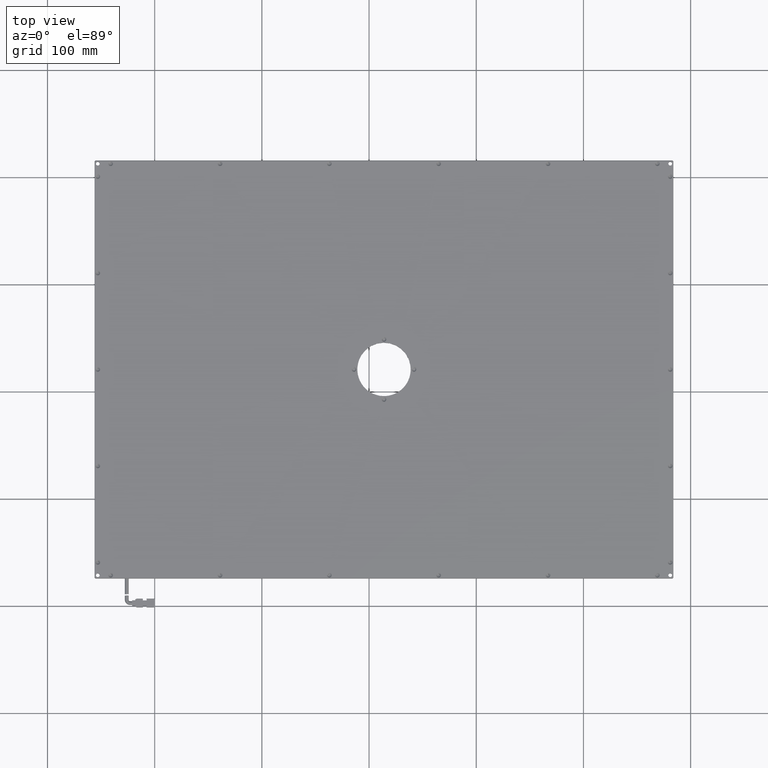
[diagram: clean part render]
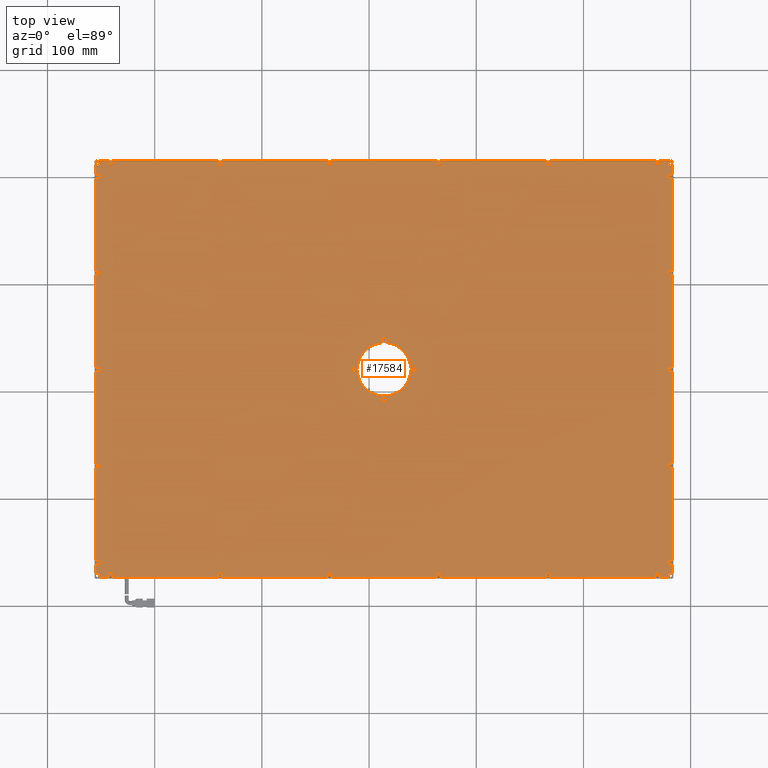
[diagram: same view with one face highlighted and labeled with its STEP entity id]
A machine part, top view. The second image highlights one B-rep face of the part: STEP entity #17584.
In plain terms, the highlighted planar face has unit normal (0, 0, -1).
Its self-contained STEP definition (entity closure, byte-faithful):
#155 = AXIS2_PLACEMENT_3D ( 'NONE', #20950, #4911, #40792 ) ;
#166 = EDGE_CURVE ( 'NONE', #37357, #31211, #18903, .T. ) ;
#238 = VECTOR ( 'NONE', #29577, 1000.000000000000100 ) ;
#309 = CARTESIAN_POINT ( 'NONE',  ( 282.7338491700787100, -173.7877225866915600, 13.00000000001910500 ) ) ;
#612 = CARTESIAN_POINT ( 'NONE',  ( 16.14095595130821100, -7.287722586691636200, 13.00000000000500200 ) ) ;
#625 = DIRECTION ( 'NONE',  ( 0.0000000000000000000, 0.0000000000000000000, -1.000000000000000000 ) ) ;
#810 = VERTEX_POINT ( 'NONE', #4248 ) ;
#872 = EDGE_CURVE ( 'NONE', #2070, #21218, #9017, .T. ) ;
#898 = CARTESIAN_POINT ( 'NONE',  ( 283.4409559512651500, 215.7122774133083900, 13.00000000001910100 ) ) ;
#939 = EDGE_CURVE ( 'NONE', #28006, #42397, #39260, .T. ) ;
#941 = DIRECTION ( 'NONE',  ( 1.000000000000000000, 0.0000000000000000000, 0.0000000000000000000 ) ) ;
#1049 = VERTEX_POINT ( 'NONE', #12211 ) ;
#1092 = EDGE_CURVE ( 'NONE', #35466, #3641, #39222, .T. ) ;
#1133 = CARTESIAN_POINT ( 'NONE',  ( -254.8519372675482400, -173.7877225866915600, 13.00000000001910100 ) ) ;
#1212 = CARTESIAN_POINT ( 'NONE',  ( 164.7409559513039900, 212.7122774133083900, 13.00000000000500200 ) ) ;
#1261 = CIRCLE ( 'NONE', #16149, 2.199999999937030100 ) ;
#1281 = CARTESIAN_POINT ( 'NONE',  ( -39.25904404868823900, 212.7122774133083900, 13.00000000000500200 ) ) ;
#1433 = EDGE_CURVE ( 'NONE', #1049, #5271, #41779, .T. ) ;
#1535 = VERTEX_POINT ( 'NONE', #40646 ) ;
#1611 = VERTEX_POINT ( 'NONE', #2041 ) ;
#1675 = CARTESIAN_POINT ( 'NONE',  ( -256.0590440487347900, -173.7877225866915600, 13.00000000001910100 ) ) ;
#1697 = ORIENTED_EDGE ( 'NONE', *, *, #9863, .T. ) ;
#1796 = EDGE_LOOP ( 'NONE', ( #34907, #39929 ) ) ;
#1914 = DIRECTION ( 'NONE',  ( -0.0000000000000000000, 0.0000000000000000000, -1.000000000000000000 ) ) ;
#1946 = EDGE_LOOP ( 'NONE', ( #11301, #15392 ) ) ;
#2041 = CARTESIAN_POINT ( 'NONE',  ( -255.2590440487368800, 110.7122774133084700, 13.00000000006184600 ) ) ;
#2054 = VERTEX_POINT ( 'NONE', #3352 ) ;
#2070 = VERTEX_POINT ( 'NONE', #3769 ) ;
#2075 = DIRECTION ( 'NONE',  ( 1.000000000000000000, 0.0000000000000000000, 0.0000000000000000000 ) ) ;
#2140 = VERTEX_POINT ( 'NONE', #27664 ) ;
#2182 = CARTESIAN_POINT ( 'NONE',  ( 280.9409559512652100, -159.2877225866916100, 13.00000000006184600 ) ) ;
#2296 = DIRECTION ( 'NONE',  ( -9.856383386609724400E-017, 0.0000000000000000000, 1.000000000000000000 ) ) ;
#2327 = DIRECTION ( 'NONE',  ( 0.0000000000000000000, 0.0000000000000000000, -1.000000000000000000 ) ) ;
#2416 = CIRCLE ( 'NONE', #10755, 2.199999999921153900 ) ;
#2472 = DIRECTION ( 'NONE',  ( -1.000000000000000000, 0.0000000000000000000, 0.0000000000000000000 ) ) ;
#2608 = DIRECTION ( 'NONE',  ( 1.000000000000000000, 0.0000000000000000000, 0.0000000000000000000 ) ) ;
#2625 = FACE_BOUND ( 'NONE', #42572, .T. ) ;
#2856 = AXIS2_PLACEMENT_3D ( 'NONE', #31541, #38002, #5338 ) ;
#2875 = DIRECTION ( 'NONE',  ( 1.000000000000000000, 0.0000000000000000000, 0.0000000000000000000 ) ) ;
#2929 = DIRECTION ( 'NONE',  ( 1.000000000000000000, 0.0000000000000000000, 0.0000000000000000000 ) ) ;
#2967 = EDGE_CURVE ( 'NONE', #38368, #32480, #5172, .T. ) ;
#3088 = DIRECTION ( 'NONE',  ( 1.000000000000000000, 0.0000000000000000000, 0.0000000000000000000 ) ) ;
#3093 = CIRCLE ( 'NONE', #14209, 2.200000000059376700 ) ;
#3101 = AXIS2_PLACEMENT_3D ( 'NONE', #15348, #2296, #35098 ) ;
#3177 = DIRECTION ( 'NONE',  ( 0.0000000000000000000, -1.000000000000000000, 0.0000000000000000000 ) ) ;
#3303 = AXIS2_PLACEMENT_3D ( 'NONE', #27501, #27355, #20795 ) ;
#3332 = ORIENTED_EDGE ( 'NONE', *, *, #40473, .T. ) ;
#3347 = CIRCLE ( 'NONE', #10128, 2.200000000002089200 ) ;
#3352 = CARTESIAN_POINT ( 'NONE',  ( 64.94095595126519500, 214.9122774132372600, 13.00000000006184600 ) ) ;
#3381 = EDGE_CURVE ( 'NONE', #27591, #31939, #29188, .T. ) ;
#3417 = CARTESIAN_POINT ( 'NONE',  ( -139.0590440487348200, 212.7122774133083900, 13.00000000000500200 ) ) ;
#3450 = DIRECTION ( 'NONE',  ( -0.0000000000000000000, 0.0000000000000000000, -1.000000000000000000 ) ) ;
#3451 = EDGE_CURVE ( 'NONE', #31939, #27591, #16848, .T. ) ;
#3641 = VERTEX_POINT ( 'NONE', #6896 ) ;
#3656 = FACE_BOUND ( 'NONE', #31641, .T. ) ;
#3735 = VERTEX_POINT ( 'NONE', #612 ) ;
#3769 = CARTESIAN_POINT ( 'NONE',  ( -34.85904404878137100, 212.7122774133083900, 13.00000000000500200 ) ) ;
#4070 = AXIS2_PLACEMENT_3D ( 'NONE', #6003, #19163, #16032 ) ;
#4097 = AXIS2_PLACEMENT_3D ( 'NONE', #25419, #5674, #22134 ) ;
#4148 = FACE_BOUND ( 'NONE', #41769, .T. ) ;
#4168 = DIRECTION ( 'NONE',  ( -0.0000000000000000000, 0.0000000000000000000, -1.000000000000000000 ) ) ;
#4248 = CARTESIAN_POINT ( 'NONE',  ( -255.5590440487347600, 214.5051706321220000, 13.00000000001910100 ) ) ;
#4296 = DIRECTION ( 'NONE',  ( 0.0000000000000000000, 1.000000000000000000, 0.0000000000000000000 ) ) ;
#4452 = EDGE_CURVE ( 'NONE', #18303, #13914, #16171, .T. ) ;
#4488 = EDGE_LOOP ( 'NONE', ( #14322, #20397 ) ) ;
#4668 = FACE_BOUND ( 'NONE', #9430, .T. ) ;
#4860 = AXIS2_PLACEMENT_3D ( 'NONE', #16897, #33641, #30202 ) ;
#4911 = DIRECTION ( 'NONE',  ( -0.0000000000000000000, 0.0000000000000000000, -1.000000000000000000 ) ) ;
#4991 = CARTESIAN_POINT ( 'NONE',  ( -250.8590440487327300, -69.28772258669162900, 13.00000000006184600 ) ) ;
#5039 = CIRCLE ( 'NONE', #11040, 1.750000000000029300 ) ;
#5040 = CARTESIAN_POINT ( 'NONE',  ( -255.2590440487368800, 20.71227741330838900, 13.00000000006184600 ) ) ;
#5083 = VERTEX_POINT ( 'NONE', #13051 ) ;
#5110 = CARTESIAN_POINT ( 'NONE',  ( 280.9409559512652100, 212.7122774133083900, 13.00000000001910100 ) ) ;
#5160 = VERTEX_POINT ( 'NONE', #9782 ) ;
#5168 = ORIENTED_EDGE ( 'NONE', *, *, #30577, .T. ) ;
#5172 = CIRCLE ( 'NONE', #17666, 2.199999999936586000 ) ;
#5190 = DIRECTION ( 'NONE',  ( 1.000000000000000000, 0.0000000000000000000, 0.0000000000000000000 ) ) ;
#5218 = EDGE_CURVE ( 'NONE', #41530, #2140, #24738, .T. ) ;
#5237 = CIRCLE ( 'NONE', #28224, 2.200000000002089200 ) ;
#5271 = VERTEX_POINT ( 'NONE', #26911 ) ;
#5338 = DIRECTION ( 'NONE',  ( 1.000000000000000000, 0.0000000000000000000, 0.0000000000000000000 ) ) ;
#5466 = VERTEX_POINT ( 'NONE', #21349 ) ;
#5468 = DIRECTION ( 'NONE',  ( -0.0000000000000000000, -9.856383386550534000E-017, -1.000000000000000000 ) ) ;
#5520 = EDGE_LOOP ( 'NONE', ( #5591, #28084 ) ) ;
#5524 = EDGE_CURVE ( 'NONE', #22888, #37449, #5237, .T. ) ;
#5591 = ORIENTED_EDGE ( 'NONE', *, *, #34864, .T. ) ;
#5670 = DIRECTION ( 'NONE',  ( 0.0000000000000000000, -0.0000000000000000000, 1.000000000000000000 ) ) ;
#5674 = DIRECTION ( 'NONE',  ( -0.0000000000000000000, 0.0000000000000000000, -1.000000000000000000 ) ) ;
#5793 = CARTESIAN_POINT ( 'NONE',  ( -14.05904404873481500, 20.71227741330833200, 13.00000000000500200 ) ) ;
#5865 = ORIENTED_EDGE ( 'NONE', *, *, #12553, .T. ) ;
#5893 = CARTESIAN_POINT ( 'NONE',  ( -250.8590440487327300, 200.7122774133083900, 13.00000000006184600 ) ) ;
#5970 = DIRECTION ( 'NONE',  ( 1.000000000000000000, 0.0000000000000000000, 0.0000000000000000000 ) ) ;
#6003 = CARTESIAN_POINT ( 'NONE',  ( 41.94095595126523800, 20.71227741330844600, 13.00000000000500200 ) ) ;
#6057 = CARTESIAN_POINT ( 'NONE',  ( 11.74095595122221000, -7.287722586691636200, 13.00000000000500200 ) ) ;
#6070 = DIRECTION ( 'NONE',  ( 0.0000000000000000000, 0.0000000000000000000, -1.000000000000000000 ) ) ;
#6091 = DIRECTION ( 'NONE',  ( 1.000000000000000000, 0.0000000000000000000, 0.0000000000000000000 ) ) ;
#6218 = DIRECTION ( 'NONE',  ( 1.000000000000000000, 0.0000000000000000000, 0.0000000000000000000 ) ) ;
#6426 = CARTESIAN_POINT ( 'NONE',  ( 13.94095595126543300, 48.71227741330841400, 13.00000000000500200 ) ) ;
#6553 = CARTESIAN_POINT ( 'NONE',  ( -241.0590440487347900, -171.2877225866916100, 13.00000000000500200 ) ) ;
#6652 = CARTESIAN_POINT ( 'NONE',  ( -255.5590440487347600, 214.5051706321220000, 13.00000000001910100 ) ) ;
#6727 = ORIENTED_EDGE ( 'NONE', *, *, #15500, .F. ) ;
#6789 = CARTESIAN_POINT ( 'NONE',  ( 13.94095595126520900, -7.287722586691636200, 13.00000000000500200 ) ) ;
#6817 = EDGE_LOOP ( 'NONE', ( #7211, #30540 ) ) ;
#6896 = CARTESIAN_POINT ( 'NONE',  ( 279.1909559512652100, -171.2877225866916100, 13.00000000001910100 ) ) ;
#6960 = CARTESIAN_POINT ( 'NONE',  ( -253.0590440487347900, 110.7122774133084700, 13.00000000006184600 ) ) ;
#7012 = EDGE_LOOP ( 'NONE', ( #35699, #39172 ) ) ;
#7086 = DIRECTION ( 'NONE',  ( 0.0000000000000000000, 0.0000000000000000000, -1.000000000000000000 ) ) ;
#7135 = CARTESIAN_POINT ( 'NONE',  ( -253.0590440487347900, 110.7122774133084700, 13.00000000006184600 ) ) ;
#7173 = EDGE_CURVE ( 'NONE', #32065, #31492, #11614, .T. ) ;
#7211 = ORIENTED_EDGE ( 'NONE', *, *, #4452, .T. ) ;
#7224 = FACE_BOUND ( 'NONE', #17793, .T. ) ;
#7309 = CARTESIAN_POINT ( 'NONE',  ( -253.0590440487347900, 212.7122774133083900, 13.00000000001910100 ) ) ;
#7329 = CARTESIAN_POINT ( 'NONE',  ( 279.1909559512652100, 212.7122774133083900, 13.00000000001910100 ) ) ;
#7382 = VERTEX_POINT ( 'NONE', #42430 ) ;
#7689 = CARTESIAN_POINT ( 'NONE',  ( -256.0590440487347900, 215.2122774133083300, 13.00000000001910100 ) ) ;
#7739 = CARTESIAN_POINT ( 'NONE',  ( -141.2590440486559700, 212.7122774133083900, 13.00000000000500200 ) ) ;
#7796 = EDGE_CURVE ( 'NONE', #10283, #10645, #18165, .T. ) ;
#7873 = AXIS2_PLACEMENT_3D ( 'NONE', #20359, #17068, #29813 ) ;
#7986 = CARTESIAN_POINT ( 'NONE',  ( 280.9409559512652100, 200.7122774133083900, 13.00000000006184600 ) ) ;
#8167 = CARTESIAN_POINT ( 'NONE',  ( -136.8590440488136700, -171.2877225866916100, 13.00000000000500200 ) ) ;
#8248 = FACE_BOUND ( 'NONE', #7012, .T. ) ;
#8279 = ORIENTED_EDGE ( 'NONE', *, *, #42041, .F. ) ;
#8287 = CIRCLE ( 'NONE', #18105, 2.199999999937030100 ) ;
#8288 = AXIS2_PLACEMENT_3D ( 'NONE', #17883, #31334, #11703 ) ;
#8292 = VERTEX_POINT ( 'NONE', #35820 ) ;
#8374 = CIRCLE ( 'NONE', #39011, 2.200000000002089200 ) ;
#8397 = DIRECTION ( 'NONE',  ( -0.0000000000000000000, 0.0000000000000000000, -1.000000000000000000 ) ) ;
#8538 = AXIS2_PLACEMENT_3D ( 'NONE', #41258, #21552, #2075 ) ;
#8561 = LINE ( 'NONE', #7689, #12678 ) ;
#8601 = CARTESIAN_POINT ( 'NONE',  ( -136.8590440488136700, 212.7122774133083900, 13.00000000000500200 ) ) ;
#8778 = ORIENTED_EDGE ( 'NONE', *, *, #22041, .T. ) ;
#8834 = ORIENTED_EDGE ( 'NONE', *, *, #9964, .T. ) ;
#8915 = CIRCLE ( 'NONE', #8288, 2.199999999961177500 ) ;
#8918 = CARTESIAN_POINT ( 'NONE',  ( -141.2590440486559700, -171.2877225866916100, 13.00000000000500200 ) ) ;
#8927 = AXIS2_PLACEMENT_3D ( 'NONE', #23180, #29900, #30186 ) ;
#8969 = CARTESIAN_POINT ( 'NONE',  ( 268.9409559512652100, -171.2877225866916100, 13.00000000000500200 ) ) ;
#9001 = CARTESIAN_POINT ( 'NONE',  ( 64.94095595126519500, -171.2877225866916100, 13.00000000006184600 ) ) ;
#9017 = CIRCLE ( 'NONE', #18669, 2.199999999953433900 ) ;
#9324 = EDGE_CURVE ( 'NONE', #19877, #8292, #35116, .T. ) ;
#9338 = CIRCLE ( 'NONE', #4860, 2.199999999936586000 ) ;
#9384 = CARTESIAN_POINT ( 'NONE',  ( 64.94095595126519500, -171.2877225866916100, 13.00000000006184600 ) ) ;
#9430 = EDGE_LOOP ( 'NONE', ( #27512, #13890 ) ) ;
#9669 = AXIS2_PLACEMENT_3D ( 'NONE', #33167, #7086, #39939 ) ;
#9782 = CARTESIAN_POINT ( 'NONE',  ( -243.2590440487941800, -171.2877225866916100, 13.00000000000500200 ) ) ;
#9795 = FACE_BOUND ( 'NONE', #31612, .T. ) ;
#9857 = DIRECTION ( 'NONE',  ( 1.000000000000000000, 0.0000000000000000000, 0.0000000000000000000 ) ) ;
#9863 = EDGE_CURVE ( 'NONE', #5160, #7382, #19699, .T. ) ;
#9901 = EDGE_CURVE ( 'NONE', #23667, #27401, #1261, .T. ) ;
#9955 = LINE ( 'NONE', #1133, #20747 ) ;
#9964 = EDGE_CURVE ( 'NONE', #38181, #22035, #35084, .T. ) ;
#9965 = DIRECTION ( 'NONE',  ( 9.856383386548544600E-017, -0.0000000000000000000, 1.000000000000000000 ) ) ;
#10054 = AXIS2_PLACEMENT_3D ( 'NONE', #29311, #32607, #3088 ) ;
#10128 = AXIS2_PLACEMENT_3D ( 'NONE', #35573, #29284, #6091 ) ;
#10168 = CARTESIAN_POINT ( 'NONE',  ( -255.2590440487368800, -159.2877225866916100, 13.00000000006184600 ) ) ;
#10283 = VERTEX_POINT ( 'NONE', #30215 ) ;
#10324 = FACE_BOUND ( 'NONE', #11131, .T. ) ;
#10340 = AXIS2_PLACEMENT_3D ( 'NONE', #35143, #15547, #2472 ) ;
#10352 = ORIENTED_EDGE ( 'NONE', *, *, #12608, .T. ) ;
#10419 = EDGE_CURVE ( 'NONE', #21218, #2070, #41201, .T. ) ;
#10624 = EDGE_CURVE ( 'NONE', #12320, #28977, #14953, .T. ) ;
#10645 = VERTEX_POINT ( 'NONE', #35774 ) ;
#10648 = CIRCLE ( 'NONE', #3303, 2.199999999928870000 ) ;
#10658 = EDGE_CURVE ( 'NONE', #8292, #19877, #16471, .T. ) ;
#10694 = AXIS2_PLACEMENT_3D ( 'NONE', #16196, #38708, #19344 ) ;
#10735 = EDGE_CURVE ( 'NONE', #7382, #5160, #3093, .T. ) ;
#10755 = AXIS2_PLACEMENT_3D ( 'NONE', #20363, #4168, #13882 ) ;
#10782 = EDGE_CURVE ( 'NONE', #37449, #22888, #40559, .T. ) ;
#10824 = CIRCLE ( 'NONE', #39570, 2.199999999937030100 ) ;
#10827 = ORIENTED_EDGE ( 'NONE', *, *, #35250, .T. ) ;
#10836 = ORIENTED_EDGE ( 'NONE', *, *, #26618, .T. ) ;
#10843 = ORIENTED_EDGE ( 'NONE', *, *, #40350, .T. ) ;
#10865 = CARTESIAN_POINT ( 'NONE',  ( 169.1409559512263500, 212.7122774133083900, 13.00000000000500200 ) ) ;
#10937 = VECTOR ( 'NONE', #11775, 1000.000000000000100 ) ;
#10986 = AXIS2_PLACEMENT_3D ( 'NONE', #6960, #36506, #29460 ) ;
#11040 = AXIS2_PLACEMENT_3D ( 'NONE', #19434, #42442, #29459 ) ;
#11131 = EDGE_LOOP ( 'NONE', ( #19057, #25927 ) ) ;
#11251 = DIRECTION ( 'NONE',  ( 1.000000000000000000, -0.0000000000000000000, 0.0000000000000000000 ) ) ;
#11271 = EDGE_LOOP ( 'NONE', ( #21249, #34164 ) ) ;
#11294 = DIRECTION ( 'NONE',  ( 1.000000000000000000, 0.0000000000000000000, 0.0000000000000000000 ) ) ;
#11301 = ORIENTED_EDGE ( 'NONE', *, *, #10658, .F. ) ;
#11543 = VERTEX_POINT ( 'NONE', #27905 ) ;
#11614 = CIRCLE ( 'NONE', #33234, 1.750000000000029300 ) ;
#11643 = CARTESIAN_POINT ( 'NONE',  ( -14.05904404873481500, 18.51227741325395100, 13.00000000000500200 ) ) ;
#11681 = DIRECTION ( 'NONE',  ( 1.000000000000000000, 0.0000000000000000000, 0.0000000000000000000 ) ) ;
#11703 = DIRECTION ( 'NONE',  ( 1.000000000000000000, 0.0000000000000000000, 0.0000000000000000000 ) ) ;
#11727 = AXIS2_PLACEMENT_3D ( 'NONE', #40932, #14800, #18097 ) ;
#11765 = DIRECTION ( 'NONE',  ( 0.0000000000000000000, -1.000000000000000000, 0.0000000000000000000 ) ) ;
#11775 = DIRECTION ( 'NONE',  ( -0.7071067811865474600, -0.7071067811865474600, 0.0000000000000000000 ) ) ;
#11910 = ORIENTED_EDGE ( 'NONE', *, *, #35432, .T. ) ;
#11923 = CARTESIAN_POINT ( 'NONE',  ( 283.4409559512651500, -173.0806158055050900, 13.00000000001910100 ) ) ;
#11959 = EDGE_LOOP ( 'NONE', ( #10352, #14652 ) ) ;
#12013 = EDGE_CURVE ( 'NONE', #31576, #31308, #20911, .T. ) ;
#12110 = CARTESIAN_POINT ( 'NONE',  ( -253.0590440487347900, -159.2877225866916100, 13.00000000006184600 ) ) ;
#12211 = CARTESIAN_POINT ( 'NONE',  ( 38.94095595126523100, 20.71227741330839200, 13.00000000001910100 ) ) ;
#12290 = VERTEX_POINT ( 'NONE', #19107 ) ;
#12320 = VERTEX_POINT ( 'NONE', #32578 ) ;
#12349 = CARTESIAN_POINT ( 'NONE',  ( -14.05904404873481500, 20.71227741330833200, 13.00000000000500200 ) ) ;
#12477 = DIRECTION ( 'NONE',  ( -0.0000000000000000000, 0.0000000000000000000, -1.000000000000000000 ) ) ;
#12553 = EDGE_CURVE ( 'NONE', #2054, #12290, #10648, .T. ) ;
#12608 = EDGE_CURVE ( 'NONE', #34131, #18975, #13186, .T. ) ;
#12678 = VECTOR ( 'NONE', #20745, 1000.000000000000000 ) ;
#12689 = VERTEX_POINT ( 'NONE', #35415 ) ;
#12699 = CARTESIAN_POINT ( 'NONE',  ( -253.0590440487347900, 20.71227741330838900, 13.00000000006184600 ) ) ;
#12788 = DIRECTION ( 'NONE',  ( 0.0000000000000000000, -1.000000000000000000, 0.0000000000000000000 ) ) ;
#12850 = FACE_BOUND ( 'NONE', #30313, .T. ) ;
#12891 = EDGE_LOOP ( 'NONE', ( #30575, #28425 ) ) ;
#13051 = CARTESIAN_POINT ( 'NONE',  ( 271.1409559512018200, -171.2877225866916100, 13.00000000000500200 ) ) ;
#13076 = VERTEX_POINT ( 'NONE', #4991 ) ;
#13186 = CIRCLE ( 'NONE', #40701, 2.200000000002089200 ) ;
#13189 = DIRECTION ( 'NONE',  ( 1.000000000000000000, 0.0000000000000000000, 0.0000000000000000000 ) ) ;
#13235 = ORIENTED_EDGE ( 'NONE', *, *, #25370, .F. ) ;
#13301 = DIRECTION ( 'NONE',  ( -0.0000000000000000000, 0.0000000000000000000, -1.000000000000000000 ) ) ;
#13305 = AXIS2_PLACEMENT_3D ( 'NONE', #7986, #30912, #11294 ) ;
#13434 = CARTESIAN_POINT ( 'NONE',  ( 283.4409559512650400, -173.0806158055051200, 13.00000000001909800 ) ) ;
#13480 = DIRECTION ( 'NONE',  ( 1.000000000000000000, 0.0000000000000000000, 0.0000000000000000000 ) ) ;
#13619 = VERTEX_POINT ( 'NONE', #1212 ) ;
#13721 = DIRECTION ( 'NONE',  ( 1.000000000000000000, 0.0000000000000000000, 0.0000000000000000000 ) ) ;
#13758 = CARTESIAN_POINT ( 'NONE',  ( -253.0590440487347900, -171.2877225866916100, 13.00000000001910100 ) ) ;
#13777 = CIRCLE ( 'NONE', #37464, 2.199999999928870000 ) ;
#13882 = DIRECTION ( 'NONE',  ( 1.000000000000000000, 0.0000000000000000000, 0.0000000000000000000 ) ) ;
#13889 = DIRECTION ( 'NONE',  ( 1.000000000000000000, 0.0000000000000000000, 0.0000000000000000000 ) ) ;
#13890 = ORIENTED_EDGE ( 'NONE', *, *, #38724, .T. ) ;
#13914 = VERTEX_POINT ( 'NONE', #8918 ) ;
#13936 = CARTESIAN_POINT ( 'NONE',  ( 282.7338491700784900, 215.2122774133083300, 13.00000000001910100 ) ) ;
#14159 = DIRECTION ( 'NONE',  ( 1.000000000000000000, 0.0000000000000000000, 0.0000000000000000000 ) ) ;
#14209 = AXIS2_PLACEMENT_3D ( 'NONE', #6553, #33178, #36514 ) ;
#14275 = CIRCLE ( 'NONE', #10694, 2.199999999953433900 ) ;
#14322 = ORIENTED_EDGE ( 'NONE', *, *, #872, .T. ) ;
#14387 = ORIENTED_EDGE ( 'NONE', *, *, #9901, .T. ) ;
#14569 = AXIS2_PLACEMENT_3D ( 'NONE', #34010, #20542, #941 ) ;
#14652 = ORIENTED_EDGE ( 'NONE', *, *, #26821, .T. ) ;
#14800 = DIRECTION ( 'NONE',  ( -0.0000000000000000000, 0.0000000000000000000, -1.000000000000000000 ) ) ;
#14895 = ORIENTED_EDGE ( 'NONE', *, *, #27036, .T. ) ;
#14902 = DIRECTION ( 'NONE',  ( -0.0000000000000000000, 0.0000000000000000000, -1.000000000000000000 ) ) ;
#14953 = CIRCLE ( 'NONE', #33441, 2.200000000029345100 ) ;
#15102 = AXIS2_PLACEMENT_3D ( 'NONE', #16098, #6070, #35690 ) ;
#15151 = CIRCLE ( 'NONE', #2856, 2.199999999937030100 ) ;
#15179 = CIRCLE ( 'NONE', #20711, 2.199999999937030100 ) ;
#15348 = CARTESIAN_POINT ( 'NONE',  ( 13.94095595126543300, 48.71227741330841400, 13.00000000000500200 ) ) ;
#15392 = ORIENTED_EDGE ( 'NONE', *, *, #9324, .F. ) ;
#15492 = DIRECTION ( 'NONE',  ( -1.000000000000000000, 0.0000000000000000000, 0.0000000000000000000 ) ) ;
#15500 = EDGE_CURVE ( 'NONE', #5271, #1049, #34144, .T. ) ;
#15543 = EDGE_CURVE ( 'NONE', #42301, #11543, #16717, .T. ) ;
#15547 = DIRECTION ( 'NONE',  ( 0.0000000000000000000, 0.0000000000000000000, 1.000000000000000000 ) ) ;
#15648 = CIRCLE ( 'NONE', #34468, 2.199999999937030100 ) ;
#15662 = EDGE_CURVE ( 'NONE', #13076, #25541, #35134, .T. ) ;
#15788 = AXIS2_PLACEMENT_3D ( 'NONE', #13758, #625, #13480 ) ;
#15857 = DIRECTION ( 'NONE',  ( -0.0000000000000000000, 0.0000000000000000000, -1.000000000000000000 ) ) ;
#15953 = EDGE_CURVE ( 'NONE', #42587, #5083, #23767, .T. ) ;
#15973 = FACE_BOUND ( 'NONE', #27386, .T. ) ;
#16032 = DIRECTION ( 'NONE',  ( 1.000000000000000000, 0.0000000000000000000, 0.0000000000000000000 ) ) ;
#16098 = CARTESIAN_POINT ( 'NONE',  ( 280.9409559512652100, -171.2877225866916100, 13.00000000001910100 ) ) ;
#16128 = CIRCLE ( 'NONE', #36556, 2.199999999921153900 ) ;
#16149 = AXIS2_PLACEMENT_3D ( 'NONE', #2182, #1914, #5190 ) ;
#16171 = CIRCLE ( 'NONE', #10054, 2.199999999921153900 ) ;
#16196 = CARTESIAN_POINT ( 'NONE',  ( -37.05904404873480500, -171.2877225866916100, 13.00000000000500200 ) ) ;
#16202 = CARTESIAN_POINT ( 'NONE',  ( 271.1409559512018200, 212.7122774133083900, 13.00000000000500200 ) ) ;
#16378 = CARTESIAN_POINT ( 'NONE',  ( 11.74095595123608700, 48.71227741330841400, 13.00000000000500200 ) ) ;
#16471 = CIRCLE ( 'NONE', #4070, 2.200000000017965400 ) ;
#16543 = EDGE_CURVE ( 'NONE', #31308, #31576, #10824, .T. ) ;
#16642 = CARTESIAN_POINT ( 'NONE',  ( -253.0590440487347900, -69.28772258669162900, 13.00000000006184600 ) ) ;
#16717 = CIRCLE ( 'NONE', #17749, 2.200000000054380700 ) ;
#16768 = CIRCLE ( 'NONE', #17965, 2.200000000059376700 ) ;
#16848 = CIRCLE ( 'NONE', #17705, 2.200000000002089200 ) ;
#16897 = CARTESIAN_POINT ( 'NONE',  ( 268.9409559512652100, 212.7122774133083900, 13.00000000000500200 ) ) ;
#16977 = FACE_BOUND ( 'NONE', #36508, .T. ) ;
#17005 = CIRCLE ( 'NONE', #20559, 2.199999999937030100 ) ;
#17036 = DIRECTION ( 'NONE',  ( 9.856383386548544600E-017, -0.0000000000000000000, 1.000000000000000000 ) ) ;
#17068 = DIRECTION ( 'NONE',  ( 0.0000000000000000000, 0.0000000000000000000, -1.000000000000000000 ) ) ;
#17484 = AXIS2_PLACEMENT_3D ( 'NONE', #37525, #17916, #40892 ) ;
#17541 = ORIENTED_EDGE ( 'NONE', *, *, #3451, .T. ) ;
#17571 = CARTESIAN_POINT ( 'NONE',  ( -243.2590440487941800, 212.7122774133083900, 13.00000000000500200 ) ) ;
#17584 = ADVANCED_FACE ( 'NONE', ( #40627, #21581, #3656, #4668, #2625, #31857, #16977, #8248, #30816, #33374, #36492, #42179, #27723, #15973, #12850, #24648, #19032, #22111, #10324, #38542, #35443, #4148, #26687, #34410, #7224, #29273, #25631, #32311, #40589, #35940, #22065, #9795 ), #30139, .F. ) ;
#17666 = AXIS2_PLACEMENT_3D ( 'NONE', #22555, #15857, #2929 ) ;
#17705 = AXIS2_PLACEMENT_3D ( 'NONE', #25809, #38894, #6218 ) ;
#17749 = AXIS2_PLACEMENT_3D ( 'NONE', #12349, #25938, #3177 ) ;
#17793 = EDGE_LOOP ( 'NONE', ( #18678, #3332 ) ) ;
#17883 = CARTESIAN_POINT ( 'NONE',  ( 166.9409559512651800, -171.2877225866916100, 13.00000000000500200 ) ) ;
#17916 = DIRECTION ( 'NONE',  ( -0.0000000000000000000, 0.0000000000000000000, -1.000000000000000000 ) ) ;
#17965 = AXIS2_PLACEMENT_3D ( 'NONE', #31287, #18267, #24833 ) ;
#18097 = DIRECTION ( 'NONE',  ( 1.000000000000000000, 0.0000000000000000000, 0.0000000000000000000 ) ) ;
#18105 = AXIS2_PLACEMENT_3D ( 'NONE', #34795, #14902, #18466 ) ;
#18165 = CIRCLE ( 'NONE', #32998, 2.199999999953433900 ) ;
#18267 = DIRECTION ( 'NONE',  ( -0.0000000000000000000, 0.0000000000000000000, -1.000000000000000000 ) ) ;
#18295 = VERTEX_POINT ( 'NONE', #21352 ) ;
#18303 = VERTEX_POINT ( 'NONE', #8167 ) ;
#18466 = DIRECTION ( 'NONE',  ( 1.000000000000000000, 0.0000000000000000000, 0.0000000000000000000 ) ) ;
#18511 = CARTESIAN_POINT ( 'NONE',  ( 64.94095595126519500, 212.7122774133083900, 13.00000000006184600 ) ) ;
#18669 = AXIS2_PLACEMENT_3D ( 'NONE', #28026, #8397, #37468 ) ;
#18678 = ORIENTED_EDGE ( 'NONE', *, *, #26898, .T. ) ;
#18866 = DIRECTION ( 'NONE',  ( 1.000000000000000000, 0.0000000000000000000, 0.0000000000000000000 ) ) ;
#18903 = LINE ( 'NONE', #898, #26570 ) ;
#18957 = EDGE_CURVE ( 'NONE', #37036, #38999, #15151, .T. ) ;
#18975 = VERTEX_POINT ( 'NONE', #5040 ) ;
#19029 = AXIS2_PLACEMENT_3D ( 'NONE', #5793, #22106, #32001 ) ;
#19032 = FACE_BOUND ( 'NONE', #38354, .T. ) ;
#19057 = ORIENTED_EDGE ( 'NONE', *, *, #2967, .T. ) ;
#19072 = CIRCLE ( 'NONE', #31393, 2.199999999937030100 ) ;
#19107 = CARTESIAN_POINT ( 'NONE',  ( 64.94095595126519500, 210.5122774133795400, 13.00000000006184600 ) ) ;
#19150 = EDGE_LOOP ( 'NONE', ( #10843, #33173 ) ) ;
#19163 = DIRECTION ( 'NONE',  ( 0.0000000000000000000, -0.0000000000000000000, 1.000000000000000000 ) ) ;
#19344 = DIRECTION ( 'NONE',  ( 1.000000000000000000, 0.0000000000000000000, 0.0000000000000000000 ) ) ;
#19434 = CARTESIAN_POINT ( 'NONE',  ( 280.9409559512652100, 212.7122774133083900, 13.00000000001910100 ) ) ;
#19699 = CIRCLE ( 'NONE', #11727, 2.200000000059376700 ) ;
#19824 = ORIENTED_EDGE ( 'NONE', *, *, #42354, .F. ) ;
#19844 = ORIENTED_EDGE ( 'NONE', *, *, #30108, .T. ) ;
#19874 = CIRCLE ( 'NONE', #40800, 2.199999999936586000 ) ;
#19877 = VERTEX_POINT ( 'NONE', #26575 ) ;
#20098 = VERTEX_POINT ( 'NONE', #24113 ) ;
#20116 = EDGE_CURVE ( 'NONE', #12689, #38461, #36719, .T. ) ;
#20313 = AXIS2_PLACEMENT_3D ( 'NONE', #41551, #38187, #34873 ) ;
#20325 = DIRECTION ( 'NONE',  ( -0.0000000000000000000, 0.0000000000000000000, -1.000000000000000000 ) ) ;
#20359 = CARTESIAN_POINT ( 'NONE',  ( -253.0590440487347900, -171.2877225866916100, 13.00000000001910100 ) ) ;
#20363 = CARTESIAN_POINT ( 'NONE',  ( -139.0590440487348200, -171.2877225866916100, 13.00000000000500200 ) ) ;
#20397 = ORIENTED_EDGE ( 'NONE', *, *, #10419, .T. ) ;
#20415 = VERTEX_POINT ( 'NONE', #39204 ) ;
#20542 = DIRECTION ( 'NONE',  ( -0.0000000000000000000, 0.0000000000000000000, -1.000000000000000000 ) ) ;
#20559 = AXIS2_PLACEMENT_3D ( 'NONE', #23879, #20325, #27170 ) ;
#20663 = VERTEX_POINT ( 'NONE', #21074 ) ;
#20711 = AXIS2_PLACEMENT_3D ( 'NONE', #30384, #33542, #13889 ) ;
#20745 = DIRECTION ( 'NONE',  ( -1.000000000000000000, -0.0000000000000000000, -0.0000000000000000000 ) ) ;
#20747 = VECTOR ( 'NONE', #34341, 1000.000000000000100 ) ;
#20795 = DIRECTION ( 'NONE',  ( 0.0000000000000000000, -1.000000000000000000, 0.0000000000000000000 ) ) ;
#20888 = DIRECTION ( 'NONE',  ( 1.000000000000000000, 0.0000000000000000000, 0.0000000000000000000 ) ) ;
#20911 = CIRCLE ( 'NONE', #20313, 2.199999999937030100 ) ;
#20950 = CARTESIAN_POINT ( 'NONE',  ( -253.0590440487347900, 200.7122774133083900, 13.00000000006184600 ) ) ;
#20992 = EDGE_LOOP ( 'NONE', ( #38761, #29351 ) ) ;
#21066 = DIRECTION ( 'NONE',  ( 1.000000000000000000, 0.0000000000000000000, 0.0000000000000000000 ) ) ;
#21074 = CARTESIAN_POINT ( 'NONE',  ( 283.1409559512022700, -69.28772258669162900, 13.00000000006184600 ) ) ;
#21082 = EDGE_CURVE ( 'NONE', #32480, #38368, #9338, .T. ) ;
#21087 = EDGE_LOOP ( 'NONE', ( #33162, #14895 ) ) ;
#21133 = EDGE_CURVE ( 'NONE', #20663, #20098, #17005, .T. ) ;
#21180 = DIRECTION ( 'NONE',  ( -0.0000000000000000000, 0.0000000000000000000, -1.000000000000000000 ) ) ;
#21218 = VERTEX_POINT ( 'NONE', #1281 ) ;
#21249 = ORIENTED_EDGE ( 'NONE', *, *, #21275, .T. ) ;
#21275 = EDGE_CURVE ( 'NONE', #40207, #13619, #34461, .T. ) ;
#21349 = CARTESIAN_POINT ( 'NONE',  ( -255.5590440487347600, -173.0806158055050300, 13.00000000001909400 ) ) ;
#21352 = CARTESIAN_POINT ( 'NONE',  ( -250.8590440487327300, 110.7122774133084700, 13.00000000006184600 ) ) ;
#21552 = DIRECTION ( 'NONE',  ( -0.0000000000000000000, 0.0000000000000000000, -1.000000000000000000 ) ) ;
#21581 = FACE_BOUND ( 'NONE', #1796, .T. ) ;
#21599 = DIRECTION ( 'NONE',  ( 1.000000000000000000, 0.0000000000000000000, 0.0000000000000000000 ) ) ;
#21730 = CIRCLE ( 'NONE', #25904, 2.200000000043000900 ) ;
#21906 = ORIENTED_EDGE ( 'NONE', *, *, #29613, .T. ) ;
#22035 = VERTEX_POINT ( 'NONE', #8601 ) ;
#22041 = EDGE_CURVE ( 'NONE', #810, #5466, #33285, .T. ) ;
#22065 = FACE_BOUND ( 'NONE', #12891, .T. ) ;
#22106 = DIRECTION ( 'NONE',  ( 0.0000000000000000000, -9.856383386497560700E-017, 1.000000000000000000 ) ) ;
#22111 = FACE_BOUND ( 'NONE', #11271, .T. ) ;
#22117 = EDGE_CURVE ( 'NONE', #10645, #10283, #14275, .T. ) ;
#22134 = DIRECTION ( 'NONE',  ( 1.000000000000000000, 0.0000000000000000000, 0.0000000000000000000 ) ) ;
#22153 = CIRCLE ( 'NONE', #19029, 2.200000000054380700 ) ;
#22224 = CARTESIAN_POINT ( 'NONE',  ( -253.0590440487347900, 20.71227741330838900, 13.00000000006184600 ) ) ;
#22240 = CARTESIAN_POINT ( 'NONE',  ( -37.05904404873480500, -171.2877225866916100, 13.00000000000500200 ) ) ;
#22278 = ORIENTED_EDGE ( 'NONE', *, *, #7796, .T. ) ;
#22361 = CARTESIAN_POINT ( 'NONE',  ( -139.0590440487348200, 212.7122774133083900, 13.00000000000500200 ) ) ;
#22555 = CARTESIAN_POINT ( 'NONE',  ( 268.9409559512652100, 212.7122774133083900, 13.00000000000500200 ) ) ;
#22679 = CARTESIAN_POINT ( 'NONE',  ( -255.2590440487368800, 200.7122774133083900, 13.00000000006184600 ) ) ;
#22685 = CARTESIAN_POINT ( 'NONE',  ( -254.8090440487347900, 212.7122774133083900, 13.00000000001910100 ) ) ;
#22692 = VERTEX_POINT ( 'NONE', #42440 ) ;
#22752 = LINE ( 'NONE', #6652, #238 ) ;
#22888 = VERTEX_POINT ( 'NONE', #30850 ) ;
#22895 = AXIS2_PLACEMENT_3D ( 'NONE', #18511, #5468, #11765 ) ;
#23073 = CARTESIAN_POINT ( 'NONE',  ( 64.94095595126519500, -173.4877225866204900, 13.00000000006184600 ) ) ;
#23180 = CARTESIAN_POINT ( 'NONE',  ( -253.0590440487347900, 212.7122774133083900, 13.00000000001910100 ) ) ;
#23427 = EDGE_CURVE ( 'NONE', #13914, #18303, #2416, .T. ) ;
#23600 = AXIS2_PLACEMENT_3D ( 'NONE', #28934, #28494, #15492 ) ;
#23613 = CARTESIAN_POINT ( 'NONE',  ( 280.9409559512652100, -69.28772258669162900, 13.00000000006184600 ) ) ;
#23667 = VERTEX_POINT ( 'NONE', #28504 ) ;
#23681 = EDGE_CURVE ( 'NONE', #28977, #12320, #24891, .T. ) ;
#23767 = CIRCLE ( 'NONE', #17484, 2.199999999936586000 ) ;
#23879 = CARTESIAN_POINT ( 'NONE',  ( 280.9409559512652100, -69.28772258669162900, 13.00000000006184600 ) ) ;
#24105 = DIRECTION ( 'NONE',  ( 1.000000000000000000, 0.0000000000000000000, 0.0000000000000000000 ) ) ;
#24113 = CARTESIAN_POINT ( 'NONE',  ( 278.7409559513282000, -69.28772258669162900, 13.00000000006184600 ) ) ;
#24170 = CIRCLE ( 'NONE', #10986, 2.200000000002089200 ) ;
#24187 = ORIENTED_EDGE ( 'NONE', *, *, #38632, .T. ) ;
#24498 = CARTESIAN_POINT ( 'NONE',  ( 278.7409559513282000, 200.7122774133083900, 13.00000000006184600 ) ) ;
#24557 = VECTOR ( 'NONE', #38119, 1000.000000000000000 ) ;
#24648 = FACE_BOUND ( 'NONE', #4488, .T. ) ;
#24723 = CIRCLE ( 'NONE', #8538, 2.200000000059376700 ) ;
#24738 = CIRCLE ( 'NONE', #7873, 1.749999999999973800 ) ;
#24833 = DIRECTION ( 'NONE',  ( 1.000000000000000000, 0.0000000000000000000, 0.0000000000000000000 ) ) ;
#24891 = CIRCLE ( 'NONE', #3101, 2.200000000029345100 ) ;
#25028 = CARTESIAN_POINT ( 'NONE',  ( 166.9409559512651800, 212.7122774133083900, 13.00000000000500200 ) ) ;
#25040 = CARTESIAN_POINT ( 'NONE',  ( 266.7409559513286000, 212.7122774133083900, 13.00000000000500200 ) ) ;
#25280 = DIRECTION ( 'NONE',  ( -0.0000000000000000000, 0.0000000000000000000, -1.000000000000000000 ) ) ;
#25370 = EDGE_CURVE ( 'NONE', #40102, #31211, #40028, .T. ) ;
#25419 = CARTESIAN_POINT ( 'NONE',  ( 166.9409559512651800, -171.2877225866916100, 13.00000000000500200 ) ) ;
#25541 = VERTEX_POINT ( 'NONE', #34297 ) ;
#25589 = DIRECTION ( 'NONE',  ( -9.856383386609724400E-017, 0.0000000000000000000, 1.000000000000000000 ) ) ;
#25631 = FACE_BOUND ( 'NONE', #32738, .T. ) ;
#25714 = EDGE_LOOP ( 'NONE', ( #21906, #29116 ) ) ;
#25809 = CARTESIAN_POINT ( 'NONE',  ( -253.0590440487347900, 200.7122774133083900, 13.00000000006184600 ) ) ;
#25904 = AXIS2_PLACEMENT_3D ( 'NONE', #32804, #17036, #13721 ) ;
#25927 = ORIENTED_EDGE ( 'NONE', *, *, #21082, .T. ) ;
#25938 = DIRECTION ( 'NONE',  ( 0.0000000000000000000, -9.856383386497560700E-017, 1.000000000000000000 ) ) ;
#26298 = CARTESIAN_POINT ( 'NONE',  ( -253.0590440487347900, -159.2877225866916100, 13.00000000006184600 ) ) ;
#26570 = VECTOR ( 'NONE', #4296, 1000.000000000000000 ) ;
#26575 = CARTESIAN_POINT ( 'NONE',  ( 39.74095595124727300, 20.71227741330844600, 13.00000000000500200 ) ) ;
#26618 = EDGE_CURVE ( 'NONE', #40102, #27706, #8561, .T. ) ;
#26687 = FACE_BOUND ( 'NONE', #36360, .T. ) ;
#26821 = EDGE_CURVE ( 'NONE', #18975, #34131, #35687, .T. ) ;
#26898 = EDGE_CURVE ( 'NONE', #33942, #1535, #28546, .T. ) ;
#26911 = CARTESIAN_POINT ( 'NONE',  ( -11.05904404873481200, 20.71227741330838900, 13.00000000001910100 ) ) ;
#26974 = CARTESIAN_POINT ( 'NONE',  ( 280.9409559512652100, 110.7122774133084700, 13.00000000006184600 ) ) ;
#27002 = CIRCLE ( 'NONE', #31453, 1.749999999999973800 ) ;
#27036 = EDGE_CURVE ( 'NONE', #25541, #13076, #3347, .T. ) ;
#27081 = VERTEX_POINT ( 'NONE', #22685 ) ;
#27170 = DIRECTION ( 'NONE',  ( 1.000000000000000000, 0.0000000000000000000, 0.0000000000000000000 ) ) ;
#27355 = DIRECTION ( 'NONE',  ( -0.0000000000000000000, -9.856383386550534000E-017, -1.000000000000000000 ) ) ;
#27386 = EDGE_LOOP ( 'NONE', ( #41486, #19844 ) ) ;
#27393 = AXIS2_PLACEMENT_3D ( 'NONE', #26298, #29468, #9857 ) ;
#27401 = VERTEX_POINT ( 'NONE', #31525 ) ;
#27481 = CARTESIAN_POINT ( 'NONE',  ( -250.8590440487327300, 20.71227741330838900, 13.00000000006184600 ) ) ;
#27501 = CARTESIAN_POINT ( 'NONE',  ( 64.94095595126519500, 212.7122774133083900, 13.00000000006184600 ) ) ;
#27512 = ORIENTED_EDGE ( 'NONE', *, *, #939, .T. ) ;
#27591 = VERTEX_POINT ( 'NONE', #5893 ) ;
#27664 = CARTESIAN_POINT ( 'NONE',  ( -251.3090440487348200, -171.2877225866916100, 13.00000000001910100 ) ) ;
#27706 = VERTEX_POINT ( 'NONE', #39289 ) ;
#27710 = CIRCLE ( 'NONE', #29759, 1.750000000000029300 ) ;
#27723 = FACE_BOUND ( 'NONE', #41176, .T. ) ;
#27905 = CARTESIAN_POINT ( 'NONE',  ( -14.05904404873481500, 22.91227741336271300, 13.00000000000500200 ) ) ;
#27966 = AXIS2_PLACEMENT_3D ( 'NONE', #25028, #35063, #21599 ) ;
#28006 = VERTEX_POINT ( 'NONE', #40569 ) ;
#28026 = CARTESIAN_POINT ( 'NONE',  ( -37.05904404873480500, 212.7122774133083900, 13.00000000000500200 ) ) ;
#28084 = ORIENTED_EDGE ( 'NONE', *, *, #15953, .T. ) ;
#28155 = ORIENTED_EDGE ( 'NONE', *, *, #166, .T. ) ;
#28169 = DIRECTION ( 'NONE',  ( 1.000000000000000000, 0.0000000000000000000, 0.0000000000000000000 ) ) ;
#28224 = AXIS2_PLACEMENT_3D ( 'NONE', #12110, #25280, #28169 ) ;
#28254 = EDGE_LOOP ( 'NONE', ( #29044, #1697 ) ) ;
#28274 = EDGE_CURVE ( 'NONE', #18295, #1611, #24170, .T. ) ;
#28326 = ORIENTED_EDGE ( 'NONE', *, *, #21133, .T. ) ;
#28355 = ORIENTED_EDGE ( 'NONE', *, *, #3381, .T. ) ;
#28425 = ORIENTED_EDGE ( 'NONE', *, *, #39409, .F. ) ;
#28434 = CARTESIAN_POINT ( 'NONE',  ( 278.7409559513282000, 20.71227741330838900, 13.00000000006184600 ) ) ;
#28494 = DIRECTION ( 'NONE',  ( 0.0000000000000000000, 0.0000000000000000000, 1.000000000000000000 ) ) ;
#28504 = CARTESIAN_POINT ( 'NONE',  ( 278.7409559513282000, -159.2877225866916100, 13.00000000006184600 ) ) ;
#28536 = DIRECTION ( 'NONE',  ( -0.0000000000000000000, 0.0000000000000000000, -1.000000000000000000 ) ) ;
#28546 = CIRCLE ( 'NONE', #38362, 2.199999999928870000 ) ;
#28576 = ORIENTED_EDGE ( 'NONE', *, *, #30807, .F. ) ;
#28591 = DIRECTION ( 'NONE',  ( 0.0000000000000000000, 0.0000000000000000000, -1.000000000000000000 ) ) ;
#28634 = EDGE_CURVE ( 'NONE', #39580, #34804, #24723, .T. ) ;
#28667 = DIRECTION ( 'NONE',  ( 1.000000000000000000, 0.0000000000000000000, 0.0000000000000000000 ) ) ;
#28684 = DIRECTION ( 'NONE',  ( -0.0000000000000000000, 0.0000000000000000000, -1.000000000000000000 ) ) ;
#28800 = ORIENTED_EDGE ( 'NONE', *, *, #5218, .T. ) ;
#28934 = CARTESIAN_POINT ( 'NONE',  ( 13.94095595126520900, 20.71227741330838900, 13.00000000001910100 ) ) ;
#28977 = VERTEX_POINT ( 'NONE', #16378 ) ;
#29002 = EDGE_LOOP ( 'NONE', ( #29267, #24187 ) ) ;
#29044 = ORIENTED_EDGE ( 'NONE', *, *, #10735, .T. ) ;
#29116 = ORIENTED_EDGE ( 'NONE', *, *, #7173, .T. ) ;
#29188 = CIRCLE ( 'NONE', #155, 2.200000000002089200 ) ;
#29267 = ORIENTED_EDGE ( 'NONE', *, *, #28274, .T. ) ;
#29273 = FACE_BOUND ( 'NONE', #5520, .T. ) ;
#29284 = DIRECTION ( 'NONE',  ( -0.0000000000000000000, 0.0000000000000000000, -1.000000000000000000 ) ) ;
#29311 = CARTESIAN_POINT ( 'NONE',  ( -139.0590440487348200, -171.2877225866916100, 13.00000000000500200 ) ) ;
#29351 = ORIENTED_EDGE ( 'NONE', *, *, #10782, .T. ) ;
#29459 = DIRECTION ( 'NONE',  ( 1.000000000000000000, 0.0000000000000000000, 0.0000000000000000000 ) ) ;
#29460 = DIRECTION ( 'NONE',  ( 1.000000000000000000, 0.0000000000000000000, 0.0000000000000000000 ) ) ;
#29468 = DIRECTION ( 'NONE',  ( -0.0000000000000000000, 0.0000000000000000000, -1.000000000000000000 ) ) ;
#29550 = ORIENTED_EDGE ( 'NONE', *, *, #40977, .T. ) ;
#29577 = DIRECTION ( 'NONE',  ( 0.7071067811865474600, 0.7071067811865474600, 0.0000000000000000000 ) ) ;
#29613 = EDGE_CURVE ( 'NONE', #31492, #32065, #5039, .T. ) ;
#29753 = ORIENTED_EDGE ( 'NONE', *, *, #35915, .F. ) ;
#29759 = AXIS2_PLACEMENT_3D ( 'NONE', #42218, #2327, #35532 ) ;
#29791 = VERTEX_POINT ( 'NONE', #33592 ) ;
#29813 = DIRECTION ( 'NONE',  ( 1.000000000000000000, 0.0000000000000000000, 0.0000000000000000000 ) ) ;
#29900 = DIRECTION ( 'NONE',  ( 0.0000000000000000000, 0.0000000000000000000, -1.000000000000000000 ) ) ;
#29944 = CIRCLE ( 'NONE', #8927, 1.749999999999973800 ) ;
#29962 = ORIENTED_EDGE ( 'NONE', *, *, #35777, .T. ) ;
#30006 = ORIENTED_EDGE ( 'NONE', *, *, #22117, .T. ) ;
#30043 = ORIENTED_EDGE ( 'NONE', *, *, #23681, .F. ) ;
#30108 = EDGE_CURVE ( 'NONE', #34804, #39580, #16768, .T. ) ;
#30139 = PLANE ( 'NONE',  #9669 ) ;
#30148 = CARTESIAN_POINT ( 'NONE',  ( 282.6909559512652700, 212.7122774133083900, 13.00000000001910100 ) ) ;
#30186 = DIRECTION ( 'NONE',  ( 1.000000000000000000, 0.0000000000000000000, 0.0000000000000000000 ) ) ;
#30202 = DIRECTION ( 'NONE',  ( 1.000000000000000000, 0.0000000000000000000, 0.0000000000000000000 ) ) ;
#30215 = CARTESIAN_POINT ( 'NONE',  ( -39.25904404868823900, -171.2877225866916100, 13.00000000000500200 ) ) ;
#30223 = DIRECTION ( 'NONE',  ( 0.0000000000000000000, 0.0000000000000000000, -1.000000000000000000 ) ) ;
#30229 = VECTOR ( 'NONE', #30427, 1000.000000000000100 ) ;
#30313 = EDGE_LOOP ( 'NONE', ( #41537, #8834 ) ) ;
#30384 = CARTESIAN_POINT ( 'NONE',  ( 280.9409559512652100, -159.2877225866916100, 13.00000000006184600 ) ) ;
#30427 = DIRECTION ( 'NONE',  ( 0.7071067811865474600, -0.7071067811865474600, 0.0000000000000000000 ) ) ;
#30540 = ORIENTED_EDGE ( 'NONE', *, *, #23427, .T. ) ;
#30575 = ORIENTED_EDGE ( 'NONE', *, *, #15543, .F. ) ;
#30577 = EDGE_CURVE ( 'NONE', #12290, #2054, #31010, .T. ) ;
#30807 = EDGE_CURVE ( 'NONE', #42465, #3735, #21730, .T. ) ;
#30816 = FACE_BOUND ( 'NONE', #19150, .T. ) ;
#30850 = CARTESIAN_POINT ( 'NONE',  ( -250.8590440487327300, -159.2877225866916100, 13.00000000006184600 ) ) ;
#30877 = EDGE_CURVE ( 'NONE', #20098, #20663, #15648, .T. ) ;
#30912 = DIRECTION ( 'NONE',  ( -0.0000000000000000000, 0.0000000000000000000, -1.000000000000000000 ) ) ;
#31010 = CIRCLE ( 'NONE', #22895, 2.199999999928870000 ) ;
#31211 = VERTEX_POINT ( 'NONE', #42034 ) ;
#31287 = CARTESIAN_POINT ( 'NONE',  ( -241.0590440487347900, 212.7122774133083900, 13.00000000000500200 ) ) ;
#31308 = VERTEX_POINT ( 'NONE', #42156 ) ;
#31334 = DIRECTION ( 'NONE',  ( -0.0000000000000000000, 0.0000000000000000000, -1.000000000000000000 ) ) ;
#31393 = AXIS2_PLACEMENT_3D ( 'NONE', #26974, #33593, #24105 ) ;
#31453 = AXIS2_PLACEMENT_3D ( 'NONE', #7309, #30223, #14159 ) ;
#31492 = VERTEX_POINT ( 'NONE', #30148 ) ;
#31525 = CARTESIAN_POINT ( 'NONE',  ( 283.1409559512022700, -159.2877225866916100, 13.00000000006184600 ) ) ;
#31541 = CARTESIAN_POINT ( 'NONE',  ( 280.9409559512652100, 200.7122774133083900, 13.00000000006184600 ) ) ;
#31576 = VERTEX_POINT ( 'NONE', #28434 ) ;
#31612 = EDGE_LOOP ( 'NONE', ( #34745, #30043 ) ) ;
#31641 = EDGE_LOOP ( 'NONE', ( #10827, #28800 ) ) ;
#31683 = CARTESIAN_POINT ( 'NONE',  ( 164.7409559513039900, -171.2877225866916100, 13.00000000000500200 ) ) ;
#31857 = FACE_BOUND ( 'NONE', #28254, .T. ) ;
#31939 = VERTEX_POINT ( 'NONE', #22679 ) ;
#32001 = DIRECTION ( 'NONE',  ( 0.0000000000000000000, -1.000000000000000000, 0.0000000000000000000 ) ) ;
#32053 = DIRECTION ( 'NONE',  ( -0.0000000000000000000, -9.856383386550534000E-017, -1.000000000000000000 ) ) ;
#32061 = DIRECTION ( 'NONE',  ( 1.000000000000000000, 0.0000000000000000000, 0.0000000000000000000 ) ) ;
#32065 = VERTEX_POINT ( 'NONE', #7329 ) ;
#32102 = CIRCLE ( 'NONE', #15788, 1.749999999999973800 ) ;
#32159 = DIRECTION ( 'NONE',  ( -0.0000000000000000000, -9.856383386550534000E-017, -1.000000000000000000 ) ) ;
#32311 = FACE_OUTER_BOUND ( 'NONE', #36462, .T. ) ;
#32460 = EDGE_CURVE ( 'NONE', #29791, #22692, #8287, .T. ) ;
#32480 = VERTEX_POINT ( 'NONE', #25040 ) ;
#32488 = LINE ( 'NONE', #11923, #10937 ) ;
#32518 = AXIS2_PLACEMENT_3D ( 'NONE', #6789, #9965, #38928 ) ;
#32545 = CARTESIAN_POINT ( 'NONE',  ( 266.7409559513286000, -171.2877225866916100, 13.00000000000500200 ) ) ;
#32578 = CARTESIAN_POINT ( 'NONE',  ( 16.14095595129477800, 48.71227741330841400, 13.00000000000500200 ) ) ;
#32607 = DIRECTION ( 'NONE',  ( -0.0000000000000000000, 0.0000000000000000000, -1.000000000000000000 ) ) ;
#32615 = CARTESIAN_POINT ( 'NONE',  ( 283.1409559512022700, 200.7122774133083900, 13.00000000006184600 ) ) ;
#32738 = EDGE_LOOP ( 'NONE', ( #29550, #29962 ) ) ;
#32804 = CARTESIAN_POINT ( 'NONE',  ( 13.94095595126520900, -7.287722586691636200, 13.00000000000500200 ) ) ;
#32998 = AXIS2_PLACEMENT_3D ( 'NONE', #22240, #28684, #2608 ) ;
#33162 = ORIENTED_EDGE ( 'NONE', *, *, #15662, .T. ) ;
#33167 = CARTESIAN_POINT ( 'NONE',  ( -256.0590440487347900, 215.7122774133083900, 13.00000000001910100 ) ) ;
#33173 = ORIENTED_EDGE ( 'NONE', *, *, #18957, .T. ) ;
#33178 = DIRECTION ( 'NONE',  ( -0.0000000000000000000, 0.0000000000000000000, -1.000000000000000000 ) ) ;
#33234 = AXIS2_PLACEMENT_3D ( 'NONE', #5110, #28591, #34764 ) ;
#33285 = LINE ( 'NONE', #41784, #24557 ) ;
#33352 = DIRECTION ( 'NONE',  ( -0.0000000000000000000, 0.0000000000000000000, -1.000000000000000000 ) ) ;
#33374 = FACE_BOUND ( 'NONE', #21087, .T. ) ;
#33441 = AXIS2_PLACEMENT_3D ( 'NONE', #6426, #25589, #32061 ) ;
#33496 = EDGE_CURVE ( 'NONE', #13619, #40207, #39419, .T. ) ;
#33542 = DIRECTION ( 'NONE',  ( -0.0000000000000000000, 0.0000000000000000000, -1.000000000000000000 ) ) ;
#33592 = CARTESIAN_POINT ( 'NONE',  ( 278.7409559513282000, 110.7122774133084700, 13.00000000006184600 ) ) ;
#33593 = DIRECTION ( 'NONE',  ( -0.0000000000000000000, 0.0000000000000000000, -1.000000000000000000 ) ) ;
#33636 = DIRECTION ( 'NONE',  ( 1.000000000000000000, 0.0000000000000000000, 0.0000000000000000000 ) ) ;
#33641 = DIRECTION ( 'NONE',  ( -0.0000000000000000000, 0.0000000000000000000, -1.000000000000000000 ) ) ;
#33903 = EDGE_LOOP ( 'NONE', ( #8279, #28576 ) ) ;
#33942 = VERTEX_POINT ( 'NONE', #23073 ) ;
#33965 = AXIS2_PLACEMENT_3D ( 'NONE', #12699, #35616, #18866 ) ;
#34010 = CARTESIAN_POINT ( 'NONE',  ( 166.9409559512651800, 212.7122774133083900, 13.00000000000500200 ) ) ;
#34120 = CARTESIAN_POINT ( 'NONE',  ( 280.9409559512652100, 20.71227741330838900, 13.00000000006184600 ) ) ;
#34131 = VERTEX_POINT ( 'NONE', #27481 ) ;
#34144 = CIRCLE ( 'NONE', #10340, 25.00000000000002100 ) ;
#34164 = ORIENTED_EDGE ( 'NONE', *, *, #33496, .T. ) ;
#34232 = AXIS2_PLACEMENT_3D ( 'NONE', #16642, #3450, #13189 ) ;
#34238 = ORIENTED_EDGE ( 'NONE', *, *, #39167, .T. ) ;
#34297 = CARTESIAN_POINT ( 'NONE',  ( -255.2590440487368800, -69.28772258669162900, 13.00000000006184600 ) ) ;
#34341 = DIRECTION ( 'NONE',  ( -0.7071067811865474600, 0.7071067811865474600, 0.0000000000000000000 ) ) ;
#34410 = FACE_BOUND ( 'NONE', #6817, .T. ) ;
#34439 = ORIENTED_EDGE ( 'NONE', *, *, #30877, .T. ) ;
#34461 = CIRCLE ( 'NONE', #27966, 2.199999999961177500 ) ;
#34468 = AXIS2_PLACEMENT_3D ( 'NONE', #23613, #40577, #20888 ) ;
#34745 = ORIENTED_EDGE ( 'NONE', *, *, #10624, .F. ) ;
#34764 = DIRECTION ( 'NONE',  ( 1.000000000000000000, 0.0000000000000000000, 0.0000000000000000000 ) ) ;
#34795 = CARTESIAN_POINT ( 'NONE',  ( 280.9409559512652100, 110.7122774133084700, 13.00000000006184600 ) ) ;
#34804 = VERTEX_POINT ( 'NONE', #17571 ) ;
#34864 = EDGE_CURVE ( 'NONE', #5083, #42587, #19874, .T. ) ;
#34873 = DIRECTION ( 'NONE',  ( 1.000000000000000000, 0.0000000000000000000, 0.0000000000000000000 ) ) ;
#34907 = ORIENTED_EDGE ( 'NONE', *, *, #1092, .T. ) ;
#35063 = DIRECTION ( 'NONE',  ( -0.0000000000000000000, 0.0000000000000000000, -1.000000000000000000 ) ) ;
#35084 = CIRCLE ( 'NONE', #39522, 2.199999999921153900 ) ;
#35098 = DIRECTION ( 'NONE',  ( 1.000000000000000000, 0.0000000000000000000, 0.0000000000000000000 ) ) ;
#35116 = CIRCLE ( 'NONE', #36418, 2.200000000017965400 ) ;
#35134 = CIRCLE ( 'NONE', #34232, 2.200000000002089200 ) ;
#35143 = CARTESIAN_POINT ( 'NONE',  ( 13.94095595126520900, 20.71227741330838900, 13.00000000001910100 ) ) ;
#35178 = CARTESIAN_POINT ( 'NONE',  ( 41.94095595126523800, 20.71227741330844600, 13.00000000000500200 ) ) ;
#35250 = EDGE_CURVE ( 'NONE', #2140, #41530, #32102, .T. ) ;
#35415 = CARTESIAN_POINT ( 'NONE',  ( -254.8519372675482400, -173.7877225866915600, 13.00000000001909800 ) ) ;
#35432 = EDGE_CURVE ( 'NONE', #27401, #23667, #15179, .T. ) ;
#35443 = FACE_BOUND ( 'NONE', #20992, .T. ) ;
#35466 = VERTEX_POINT ( 'NONE', #38116 ) ;
#35532 = DIRECTION ( 'NONE',  ( 1.000000000000000000, 0.0000000000000000000, 0.0000000000000000000 ) ) ;
#35573 = CARTESIAN_POINT ( 'NONE',  ( -253.0590440487347900, -69.28772258669162900, 13.00000000006184600 ) ) ;
#35616 = DIRECTION ( 'NONE',  ( -0.0000000000000000000, 0.0000000000000000000, -1.000000000000000000 ) ) ;
#35673 = EDGE_LOOP ( 'NONE', ( #28355, #17541 ) ) ;
#35687 = CIRCLE ( 'NONE', #33965, 2.200000000002089200 ) ;
#35690 = DIRECTION ( 'NONE',  ( 1.000000000000000000, 0.0000000000000000000, 0.0000000000000000000 ) ) ;
#35699 = ORIENTED_EDGE ( 'NONE', *, *, #16543, .T. ) ;
#35774 = CARTESIAN_POINT ( 'NONE',  ( -34.85904404878137100, -171.2877225866916100, 13.00000000000500200 ) ) ;
#35777 = EDGE_CURVE ( 'NONE', #27081, #20415, #29944, .T. ) ;
#35820 = CARTESIAN_POINT ( 'NONE',  ( 44.14095595128320300, 20.71227741330844600, 13.00000000000500200 ) ) ;
#35887 = CIRCLE ( 'NONE', #13305, 2.199999999937030100 ) ;
#35915 = EDGE_CURVE ( 'NONE', #12689, #5466, #9955, .T. ) ;
#35940 = FACE_BOUND ( 'NONE', #33903, .T. ) ;
#35973 = ORIENTED_EDGE ( 'NONE', *, *, #20116, .T. ) ;
#36015 = CARTESIAN_POINT ( 'NONE',  ( -238.8590440486754300, 212.7122774133083900, 13.00000000000500200 ) ) ;
#36255 = DIRECTION ( 'NONE',  ( 1.000000000000000000, 0.0000000000000000000, 0.0000000000000000000 ) ) ;
#36360 = EDGE_LOOP ( 'NONE', ( #11910, #14387 ) ) ;
#36418 = AXIS2_PLACEMENT_3D ( 'NONE', #35178, #5670, #5970 ) ;
#36462 = EDGE_LOOP ( 'NONE', ( #19824, #28155, #13235, #10836, #38710, #8778, #29753, #35973 ) ) ;
#36492 = FACE_BOUND ( 'NONE', #29002, .T. ) ;
#36506 = DIRECTION ( 'NONE',  ( -0.0000000000000000000, 0.0000000000000000000, -1.000000000000000000 ) ) ;
#36508 = EDGE_LOOP ( 'NONE', ( #28326, #34439 ) ) ;
#36514 = DIRECTION ( 'NONE',  ( 1.000000000000000000, 0.0000000000000000000, 0.0000000000000000000 ) ) ;
#36556 = AXIS2_PLACEMENT_3D ( 'NONE', #3417, #13301, #36255 ) ;
#36719 = LINE ( 'NONE', #1675, #37214 ) ;
#37016 = ORIENTED_EDGE ( 'NONE', *, *, #32460, .T. ) ;
#37036 = VERTEX_POINT ( 'NONE', #24498 ) ;
#37214 = VECTOR ( 'NONE', #11251, 1000.000000000000000 ) ;
#37357 = VERTEX_POINT ( 'NONE', #13434 ) ;
#37393 = DIRECTION ( 'NONE',  ( -0.0000000000000000000, 0.0000000000000000000, -1.000000000000000000 ) ) ;
#37449 = VERTEX_POINT ( 'NONE', #10168 ) ;
#37464 = AXIS2_PLACEMENT_3D ( 'NONE', #9384, #32159, #12788 ) ;
#37468 = DIRECTION ( 'NONE',  ( 1.000000000000000000, 0.0000000000000000000, 0.0000000000000000000 ) ) ;
#37525 = CARTESIAN_POINT ( 'NONE',  ( 268.9409559512652100, -171.2877225866916100, 13.00000000000500200 ) ) ;
#38002 = DIRECTION ( 'NONE',  ( -0.0000000000000000000, 0.0000000000000000000, -1.000000000000000000 ) ) ;
#38116 = CARTESIAN_POINT ( 'NONE',  ( 282.6909559512652700, -171.2877225866916100, 13.00000000001910100 ) ) ;
#38119 = DIRECTION ( 'NONE',  ( -0.0000000000000000000, -1.000000000000000000, -0.0000000000000000000 ) ) ;
#38181 = VERTEX_POINT ( 'NONE', #7739 ) ;
#38187 = DIRECTION ( 'NONE',  ( -0.0000000000000000000, 0.0000000000000000000, -1.000000000000000000 ) ) ;
#38340 = DIRECTION ( 'NONE',  ( -0.0000000000000000000, 0.0000000000000000000, -1.000000000000000000 ) ) ;
#38354 = EDGE_LOOP ( 'NONE', ( #5168, #5865 ) ) ;
#38362 = AXIS2_PLACEMENT_3D ( 'NONE', #9001, #32053, #38515 ) ;
#38368 = VERTEX_POINT ( 'NONE', #16202 ) ;
#38461 = VERTEX_POINT ( 'NONE', #309 ) ;
#38515 = DIRECTION ( 'NONE',  ( 0.0000000000000000000, -1.000000000000000000, 0.0000000000000000000 ) ) ;
#38523 = EDGE_CURVE ( 'NONE', #22035, #38181, #16128, .T. ) ;
#38542 = FACE_BOUND ( 'NONE', #11959, .T. ) ;
#38632 = EDGE_CURVE ( 'NONE', #1611, #18295, #8374, .T. ) ;
#38708 = DIRECTION ( 'NONE',  ( -0.0000000000000000000, 0.0000000000000000000, -1.000000000000000000 ) ) ;
#38710 = ORIENTED_EDGE ( 'NONE', *, *, #41991, .F. ) ;
#38724 = EDGE_CURVE ( 'NONE', #42397, #28006, #8915, .T. ) ;
#38761 = ORIENTED_EDGE ( 'NONE', *, *, #5524, .T. ) ;
#38894 = DIRECTION ( 'NONE',  ( -0.0000000000000000000, 0.0000000000000000000, -1.000000000000000000 ) ) ;
#38928 = DIRECTION ( 'NONE',  ( 1.000000000000000000, 0.0000000000000000000, 0.0000000000000000000 ) ) ;
#38999 = VERTEX_POINT ( 'NONE', #32615 ) ;
#39011 = AXIS2_PLACEMENT_3D ( 'NONE', #7135, #33352, #33636 ) ;
#39167 = EDGE_CURVE ( 'NONE', #22692, #29791, #19072, .T. ) ;
#39172 = ORIENTED_EDGE ( 'NONE', *, *, #12013, .T. ) ;
#39204 = CARTESIAN_POINT ( 'NONE',  ( -251.3090440487348200, 212.7122774133083900, 13.00000000001910100 ) ) ;
#39222 = CIRCLE ( 'NONE', #15102, 1.750000000000029300 ) ;
#39260 = CIRCLE ( 'NONE', #4097, 2.199999999961177500 ) ;
#39289 = CARTESIAN_POINT ( 'NONE',  ( -254.8519372675484100, 215.2122774133083300, 13.00000000001910100 ) ) ;
#39409 = EDGE_CURVE ( 'NONE', #11543, #42301, #22153, .T. ) ;
#39419 = CIRCLE ( 'NONE', #14569, 2.199999999961177500 ) ;
#39522 = AXIS2_PLACEMENT_3D ( 'NONE', #22361, #28536, #2875 ) ;
#39570 = AXIS2_PLACEMENT_3D ( 'NONE', #34120, #37393, #21066 ) ;
#39580 = VERTEX_POINT ( 'NONE', #36015 ) ;
#39585 = CARTESIAN_POINT ( 'NONE',  ( 282.7338491700784900, 215.2122774133083300, 13.00000000001915600 ) ) ;
#39831 = CARTESIAN_POINT ( 'NONE',  ( -254.8090440487347900, -171.2877225866916100, 13.00000000001910100 ) ) ;
#39862 = ORIENTED_EDGE ( 'NONE', *, *, #1433, .F. ) ;
#39929 = ORIENTED_EDGE ( 'NONE', *, *, #39978, .T. ) ;
#39939 = DIRECTION ( 'NONE',  ( -1.000000000000000000, 0.0000000000000000000, -0.0000000000000000000 ) ) ;
#39978 = EDGE_CURVE ( 'NONE', #3641, #35466, #27710, .T. ) ;
#40028 = LINE ( 'NONE', #13936, #30229 ) ;
#40102 = VERTEX_POINT ( 'NONE', #39585 ) ;
#40207 = VERTEX_POINT ( 'NONE', #10865 ) ;
#40350 = EDGE_CURVE ( 'NONE', #38999, #37036, #35887, .T. ) ;
#40473 = EDGE_CURVE ( 'NONE', #1535, #33942, #13777, .T. ) ;
#40559 = CIRCLE ( 'NONE', #27393, 2.200000000002089200 ) ;
#40569 = CARTESIAN_POINT ( 'NONE',  ( 169.1409559512263500, -171.2877225866916100, 13.00000000000500200 ) ) ;
#40577 = DIRECTION ( 'NONE',  ( -0.0000000000000000000, 0.0000000000000000000, -1.000000000000000000 ) ) ;
#40584 = CARTESIAN_POINT ( 'NONE',  ( -37.05904404873480500, 212.7122774133083900, 13.00000000000500200 ) ) ;
#40589 = FACE_BOUND ( 'NONE', #1946, .T. ) ;
#40627 = FACE_BOUND ( 'NONE', #25714, .T. ) ;
#40646 = CARTESIAN_POINT ( 'NONE',  ( 64.94095595126519500, -169.0877225867627400, 13.00000000006184600 ) ) ;
#40656 = AXIS2_PLACEMENT_3D ( 'NONE', #40584, #21180, #41021 ) ;
#40701 = AXIS2_PLACEMENT_3D ( 'NONE', #22224, #12477, #28667 ) ;
#40792 = DIRECTION ( 'NONE',  ( 1.000000000000000000, 0.0000000000000000000, 0.0000000000000000000 ) ) ;
#40800 = AXIS2_PLACEMENT_3D ( 'NONE', #8969, #38340, #11681 ) ;
#40892 = DIRECTION ( 'NONE',  ( 1.000000000000000000, 0.0000000000000000000, 0.0000000000000000000 ) ) ;
#40932 = CARTESIAN_POINT ( 'NONE',  ( -241.0590440487347900, -171.2877225866916100, 13.00000000000500200 ) ) ;
#40977 = EDGE_CURVE ( 'NONE', #20415, #27081, #27002, .T. ) ;
#41021 = DIRECTION ( 'NONE',  ( 1.000000000000000000, 0.0000000000000000000, 0.0000000000000000000 ) ) ;
#41176 = EDGE_LOOP ( 'NONE', ( #6727, #39862 ) ) ;
#41201 = CIRCLE ( 'NONE', #40656, 2.199999999953433900 ) ;
#41258 = CARTESIAN_POINT ( 'NONE',  ( -241.0590440487347900, 212.7122774133083900, 13.00000000000500200 ) ) ;
#41363 = CIRCLE ( 'NONE', #32518, 2.200000000043000900 ) ;
#41486 = ORIENTED_EDGE ( 'NONE', *, *, #28634, .T. ) ;
#41530 = VERTEX_POINT ( 'NONE', #39831 ) ;
#41537 = ORIENTED_EDGE ( 'NONE', *, *, #38523, .T. ) ;
#41551 = CARTESIAN_POINT ( 'NONE',  ( 280.9409559512652100, 20.71227741330838900, 13.00000000006184600 ) ) ;
#41769 = EDGE_LOOP ( 'NONE', ( #34238, #37016 ) ) ;
#41779 = CIRCLE ( 'NONE', #23600, 25.00000000000002100 ) ;
#41784 = CARTESIAN_POINT ( 'NONE',  ( -255.5590440487347600, 215.7122774133083900, 13.00000000001910100 ) ) ;
#41991 = EDGE_CURVE ( 'NONE', #810, #27706, #22752, .T. ) ;
#42034 = CARTESIAN_POINT ( 'NONE',  ( 283.4409559512651500, 214.5051706321216600, 13.00000000001910600 ) ) ;
#42041 = EDGE_CURVE ( 'NONE', #3735, #42465, #41363, .T. ) ;
#42156 = CARTESIAN_POINT ( 'NONE',  ( 283.1409559512022700, 20.71227741330838900, 13.00000000006184600 ) ) ;
#42179 = FACE_BOUND ( 'NONE', #35673, .T. ) ;
#42218 = CARTESIAN_POINT ( 'NONE',  ( 280.9409559512652100, -171.2877225866916100, 13.00000000001910100 ) ) ;
#42301 = VERTEX_POINT ( 'NONE', #11643 ) ;
#42354 = EDGE_CURVE ( 'NONE', #37357, #38461, #32488, .T. ) ;
#42397 = VERTEX_POINT ( 'NONE', #31683 ) ;
#42430 = CARTESIAN_POINT ( 'NONE',  ( -238.8590440486754300, -171.2877225866916100, 13.00000000000500200 ) ) ;
#42440 = CARTESIAN_POINT ( 'NONE',  ( 283.1409559512022700, 110.7122774133084700, 13.00000000006184600 ) ) ;
#42442 = DIRECTION ( 'NONE',  ( 0.0000000000000000000, 0.0000000000000000000, -1.000000000000000000 ) ) ;
#42465 = VERTEX_POINT ( 'NONE', #6057 ) ;
#42572 = EDGE_LOOP ( 'NONE', ( #30006, #22278 ) ) ;
#42587 = VERTEX_POINT ( 'NONE', #32545 ) ;